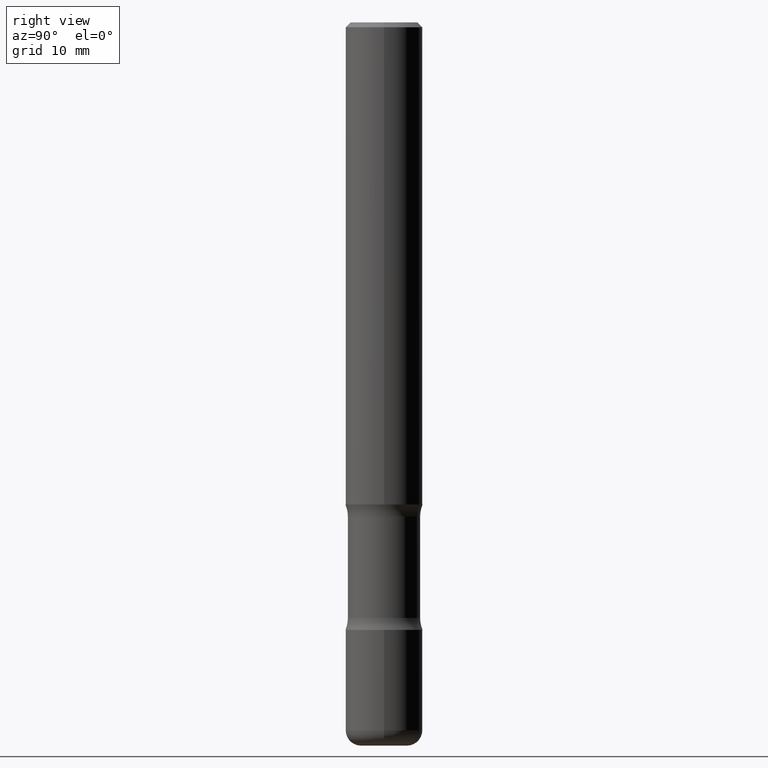
[diagram: clean part render]
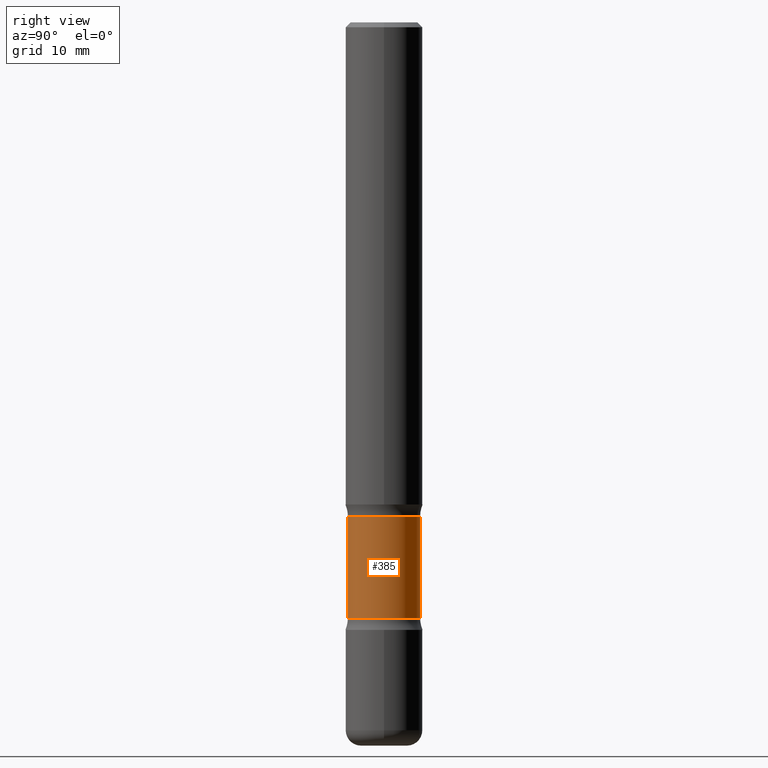
[diagram: same view with one face highlighted and labeled with its STEP entity id]
A machine part, right view. The second image highlights one B-rep face of the part: STEP entity #385.
In plain terms, the highlighted cylindrical surface (edge-blend (fillet) strip) has radius 3.7465 mm, axis along (0, -0, -1).
Its self-contained STEP definition (entity closure, byte-faithful):
#6 = EDGE_CURVE ( 'NONE', #45, #307, #181, .T. ) ;
#20 = AXIS2_PLACEMENT_3D ( 'NONE', #519, #264, #186 ) ;
#23 = FACE_OUTER_BOUND ( 'NONE', #258, .T. ) ;
#38 = VERTEX_POINT ( 'NONE', #438 ) ;
#43 = CIRCLE ( 'NONE', #67, 0.1474999999999996037 ) ;
#45 = VERTEX_POINT ( 'NONE', #60 ) ;
#50 = VECTOR ( 'NONE', #456, 39.37007874015748143 ) ;
#53 = CARTESIAN_POINT ( 'NONE',  ( 5.157494750029220030E-29, -6.723553122559551895E-15, -2.017489794855666041 ) ) ;
#60 = CARTESIAN_POINT ( 'NONE',  ( 1.029986994958783741E-15, 0.1474999999999914990, -2.431410205144336256 ) ) ;
#67 = AXIS2_PLACEMENT_3D ( 'NONE', #53, #274, #308 ) ;
#86 = EDGE_CURVE ( 'NONE', #160, #307, #451, .T. ) ;
#106 = AXIS2_PLACEMENT_3D ( 'NONE', #189, #266, #418 ) ;
#119 = ORIENTED_EDGE ( 'NONE', *, *, #6, .F. ) ;
#122 = ORIENTED_EDGE ( 'NONE', *, *, #550, .T. ) ;
#160 = VERTEX_POINT ( 'NONE', #305 ) ;
#171 = DIRECTION ( 'NONE',  ( 1.962035113374103200E-29, -4.183785902285569894E-15, -1.000000000000000000 ) ) ;
#181 = CIRCLE ( 'NONE', #20, 0.1474999999999999645 ) ;
#186 = DIRECTION ( 'NONE',  ( 6.982962677686265922E-15, 1.000000000000000000, -3.704200669375273043E-15 ) ) ;
#189 = CARTESIAN_POINT ( 'NONE',  ( 6.992606214419540956E-29, -1.063669077310624428E-14, -2.952800000000000757 ) ) ;
#205 = ORIENTED_EDGE ( 'NONE', *, *, #360, .F. ) ;
#231 = CARTESIAN_POINT ( 'NONE',  ( 1.029986994958792616E-15, 0.1474999999999891676, -2.952800000000001202 ) ) ;
#256 = ORIENTED_EDGE ( 'NONE', *, *, #86, .T. ) ;
#258 = EDGE_LOOP ( 'NONE', ( #122, #256, #119, #205 ) ) ;
#264 = DIRECTION ( 'NONE',  ( 1.962035113374103200E-29, -4.183785902285569894E-15, -1.000000000000000000 ) ) ;
#266 = DIRECTION ( 'NONE',  ( 1.962035113374103200E-29, -4.183785902285569894E-15, -1.000000000000000000 ) ) ;
#274 = DIRECTION ( 'NONE',  ( 1.962035113374103200E-29, -4.183785902285569894E-15, -1.000000000000000000 ) ) ;
#286 = CARTESIAN_POINT ( 'NONE',  ( -1.011923454671229450E-15, -0.1475000000000104283, -2.952800000000000313 ) ) ;
#305 = CARTESIAN_POINT ( 'NONE',  ( -1.046225944660106443E-15, -0.1475000000000063483, -2.017489794855665597 ) ) ;
#307 = VERTEX_POINT ( 'NONE', #346 ) ;
#308 = DIRECTION ( 'NONE',  ( 6.982962677686265922E-15, 1.000000000000000000, -3.704200669375281721E-15 ) ) ;
#346 = CARTESIAN_POINT ( 'NONE',  ( -1.046225944660099738E-15, -0.1475000000000084022, -2.431410205144335368 ) ) ;
#360 = EDGE_CURVE ( 'NONE', #38, #45, #480, .T. ) ;
#366 = VECTOR ( 'NONE', #171, 39.37007874015748143 ) ;
#385 = ADVANCED_FACE ( 'NONE', ( #23 ), #473, .T. ) ;
#418 = DIRECTION ( 'NONE',  ( 6.982962677686265922E-15, 1.000000000000000000, -3.704200669375276987E-15 ) ) ;
#438 = CARTESIAN_POINT ( 'NONE',  ( 1.029986994958773091E-15, 0.1474999999999928868, -2.017489794855666485 ) ) ;
#451 = LINE ( 'NONE', #286, #50 ) ;
#456 = DIRECTION ( 'NONE',  ( 1.962035113374103200E-29, -4.183785902285569894E-15, -1.000000000000000000 ) ) ;
#473 = CYLINDRICAL_SURFACE ( 'NONE', #106, 0.1474999999999997979 ) ;
#480 = LINE ( 'NONE', #231, #366 ) ;
#519 = CARTESIAN_POINT ( 'NONE',  ( 5.969621129157807163E-29, -8.455307499793547394E-15, -2.431410205144335812 ) ) ;
#550 = EDGE_CURVE ( 'NONE', #38, #160, #43, .T. ) ;